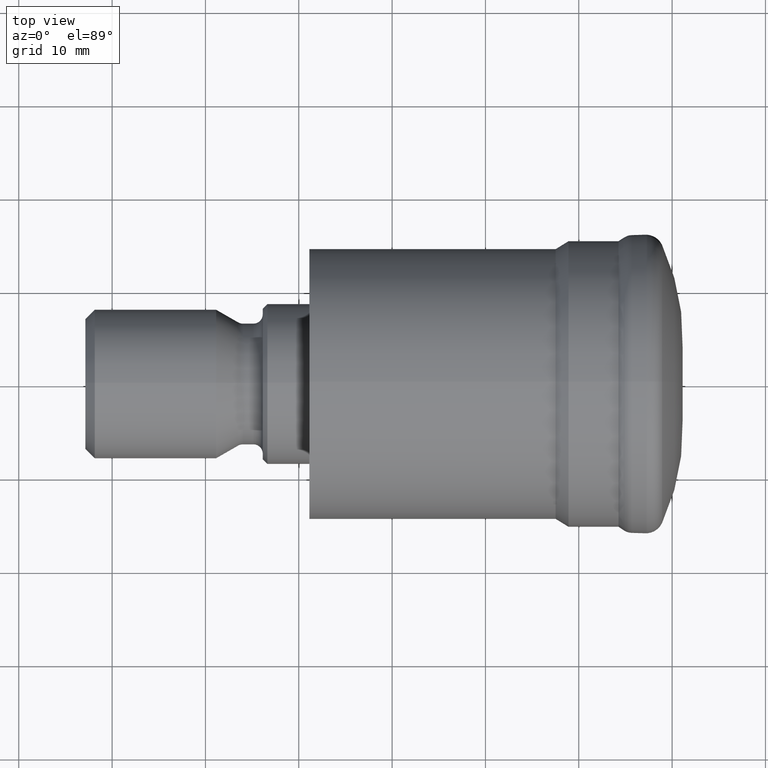
[diagram: clean part render]
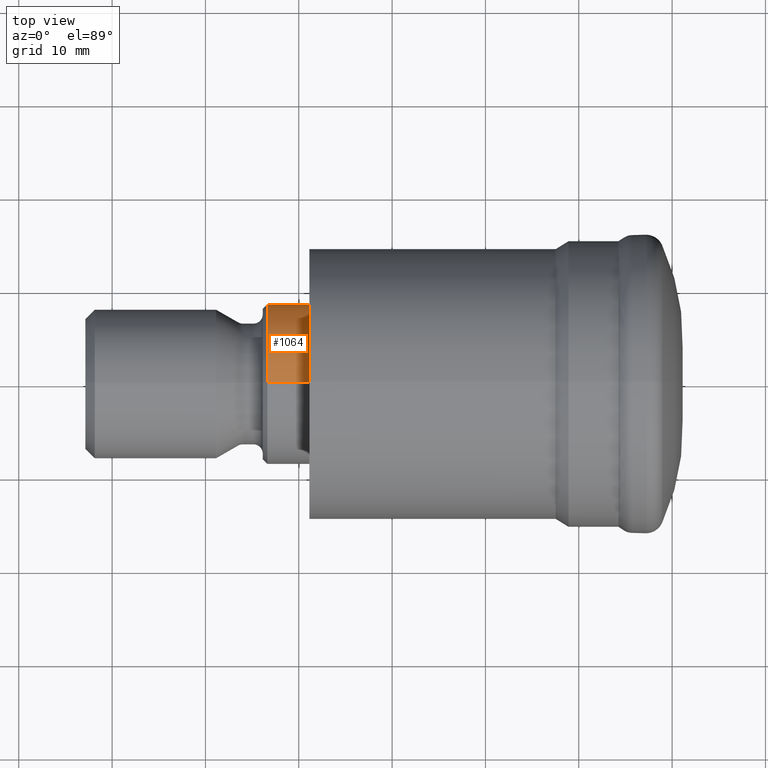
[diagram: same view with one face highlighted and labeled with its STEP entity id]
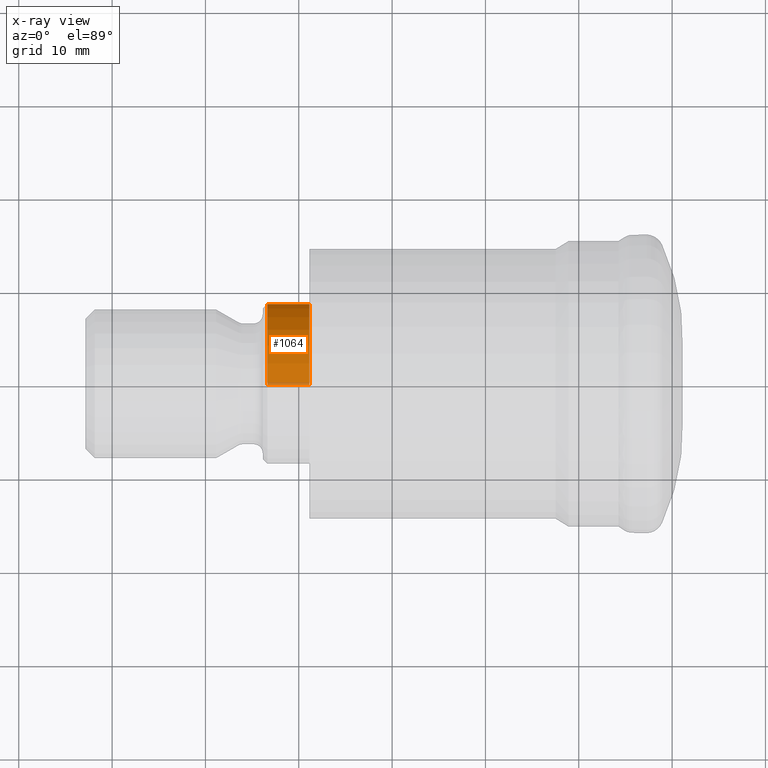
[diagram: x-ray of the same camera — body ghosted, the highlighted face saturated]
A machine part, top view. The second image highlights one B-rep face of the part: STEP entity #1064.
The next image is the same camera in x-ray: the body ghosted, the highlighted face saturated — about 3% of this face is hidden behind the body in this view.
In plain terms, the highlighted cylindrical surface (partial cylindrical patch) has radius 8.6 mm, axis along (1, -0, -0).
Its self-contained STEP definition (entity closure, byte-faithful):
#62 = DIRECTION ( 'NONE',  ( 1.000000000000000000, -0.0000000000000000000, -0.0000000000000000000 ) ) ;
#130 = DIRECTION ( 'NONE',  ( 0.0000000000000000000, 0.0000000000000000000, -1.000000000000000000 ) ) ;
#131 = CARTESIAN_POINT ( 'NONE',  ( 0.0000000000000000000, 0.0000000000000000000, 0.0000000000000000000 ) ) ;
#164 = VECTOR ( 'NONE', #906, 1000.000000000000000 ) ;
#166 = CIRCLE ( 'NONE', #561, 8.599999999999996100 ) ;
#168 = LINE ( 'NONE', #925, #164 ) ;
#222 = ORIENTED_EDGE ( 'NONE', *, *, #554, .F. ) ;
#276 = ORIENTED_EDGE ( 'NONE', *, *, #529, .T. ) ;
#295 = ORIENTED_EDGE ( 'NONE', *, *, #469, .F. ) ;
#308 = CIRCLE ( 'NONE', #430, 8.599999999999996100 ) ;
#324 = LINE ( 'NONE', #772, #346 ) ;
#346 = VECTOR ( 'NONE', #782, 1000.000000000000000 ) ;
#430 = AXIS2_PLACEMENT_3D ( 'NONE', #701, #727, #728 ) ;
#469 = EDGE_CURVE ( 'NONE', #884, #856, #308, .T. ) ;
#515 = EDGE_CURVE ( 'NONE', #882, #856, #324, .T. ) ;
#516 = AXIS2_PLACEMENT_3D ( 'NONE', #131, #62, #130 ) ;
#529 = EDGE_CURVE ( 'NONE', #862, #882, #166, .T. ) ;
#554 = EDGE_CURVE ( 'NONE', #862, #884, #168, .T. ) ;
#561 = AXIS2_PLACEMENT_3D ( 'NONE', #951, #980, #943 ) ;
#651 = ORIENTED_EDGE ( 'NONE', *, *, #515, .T. ) ;
#663 = EDGE_LOOP ( 'NONE', ( #276, #651, #295, #222 ) ) ;
#701 = CARTESIAN_POINT ( 'NONE',  ( -38.85999999999999900, 0.0000000000000000000, 0.0000000000000000000 ) ) ;
#727 = DIRECTION ( 'NONE',  ( 1.000000000000000000, -0.0000000000000000000, -0.0000000000000000000 ) ) ;
#728 = DIRECTION ( 'NONE',  ( 0.0000000000000000000, 0.0000000000000000000, -1.000000000000000000 ) ) ;
#750 = CARTESIAN_POINT ( 'NONE',  ( -38.85999999999999900, 1.053196247266723300E-015, 8.599999999999996100 ) ) ;
#772 = CARTESIAN_POINT ( 'NONE',  ( 0.0000000000000000000, 1.053196247266723300E-015, 8.599999999999996100 ) ) ;
#782 = DIRECTION ( 'NONE',  ( 1.000000000000000000, -0.0000000000000000000, -0.0000000000000000000 ) ) ;
#820 = CARTESIAN_POINT ( 'NONE',  ( -43.35999999999999200, 1.053196247266723300E-015, 8.599999999999996100 ) ) ;
#822 = CARTESIAN_POINT ( 'NONE',  ( -38.85999999999999900, 0.0000000000000000000, -8.599999999999996100 ) ) ;
#832 = CARTESIAN_POINT ( 'NONE',  ( -43.35999999999999200, 0.0000000000000000000, -8.599999999999996100 ) ) ;
#856 = VERTEX_POINT ( 'NONE', #750 ) ;
#862 = VERTEX_POINT ( 'NONE', #832 ) ;
#882 = VERTEX_POINT ( 'NONE', #820 ) ;
#884 = VERTEX_POINT ( 'NONE', #822 ) ;
#906 = DIRECTION ( 'NONE',  ( 1.000000000000000000, -0.0000000000000000000, -0.0000000000000000000 ) ) ;
#925 = CARTESIAN_POINT ( 'NONE',  ( 0.0000000000000000000, 0.0000000000000000000, -8.599999999999996100 ) ) ;
#943 = DIRECTION ( 'NONE',  ( 0.0000000000000000000, 0.0000000000000000000, -1.000000000000000000 ) ) ;
#951 = CARTESIAN_POINT ( 'NONE',  ( -43.35999999999999200, 0.0000000000000000000, 0.0000000000000000000 ) ) ;
#980 = DIRECTION ( 'NONE',  ( 1.000000000000000000, -0.0000000000000000000, -0.0000000000000000000 ) ) ;
#1064 = ADVANCED_FACE ( 'NONE', ( #1117 ), #1091, .T. ) ;
#1091 = CYLINDRICAL_SURFACE ( 'NONE', #516, 8.599999999999996100 ) ;
#1117 = FACE_OUTER_BOUND ( 'NONE', #663, .T. ) ;